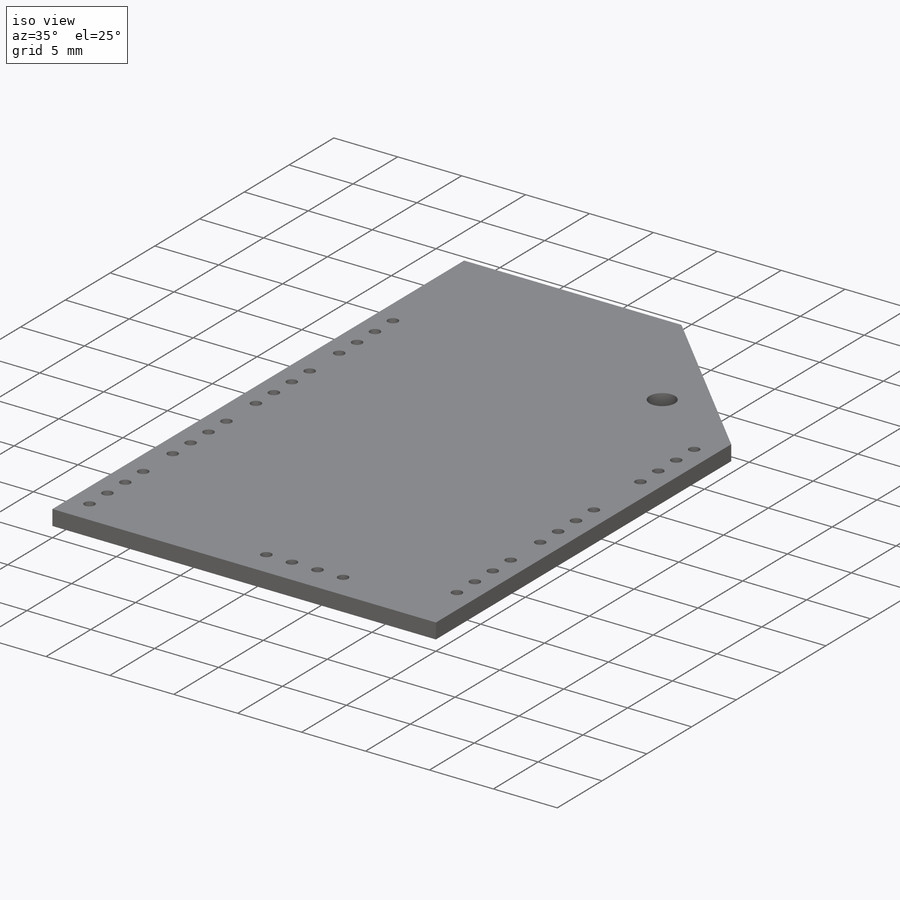
[diagram: iso view]
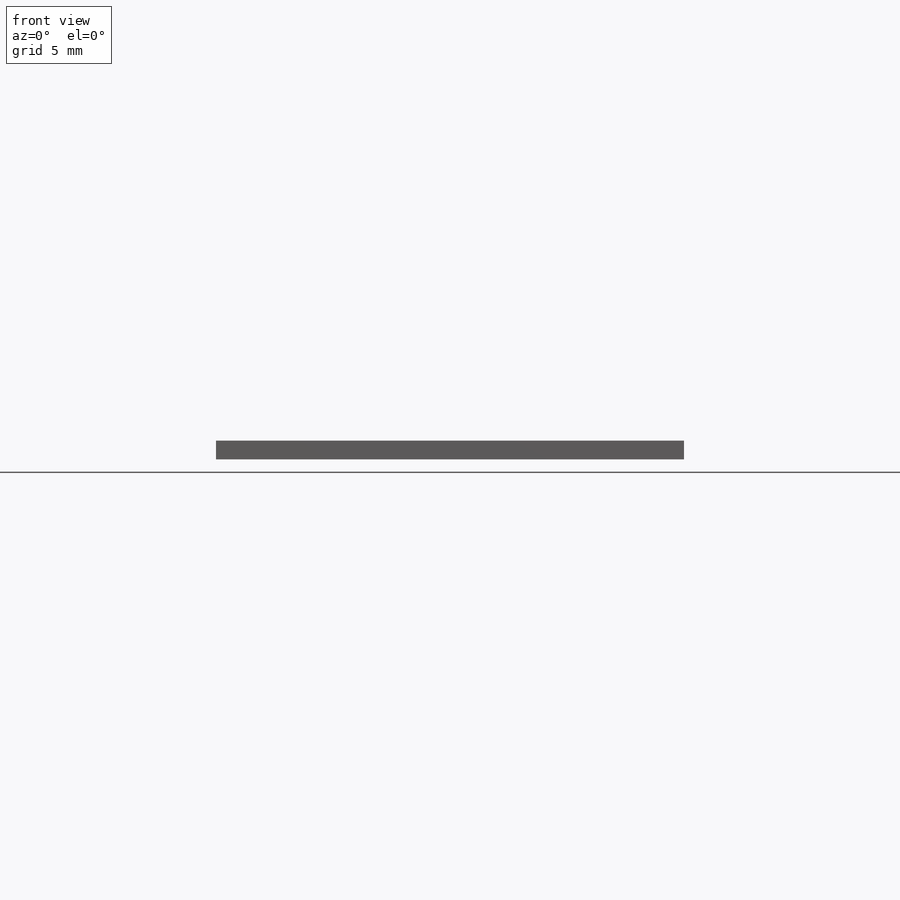
[diagram: front view]
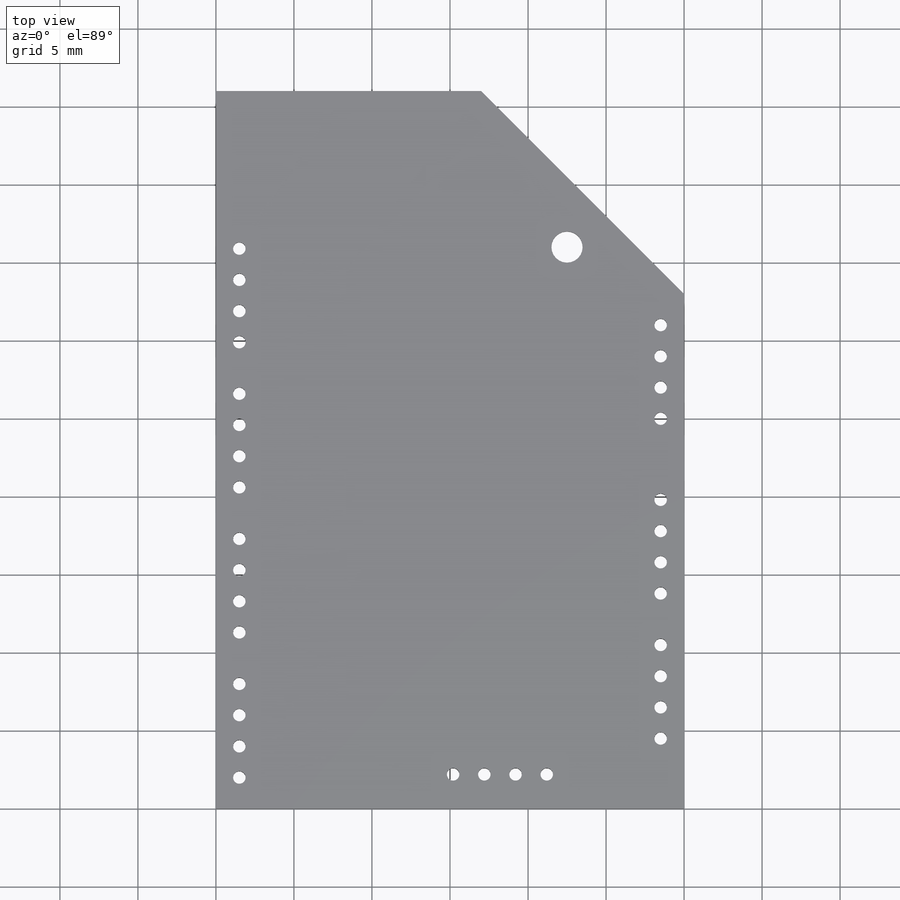
[diagram: top view]
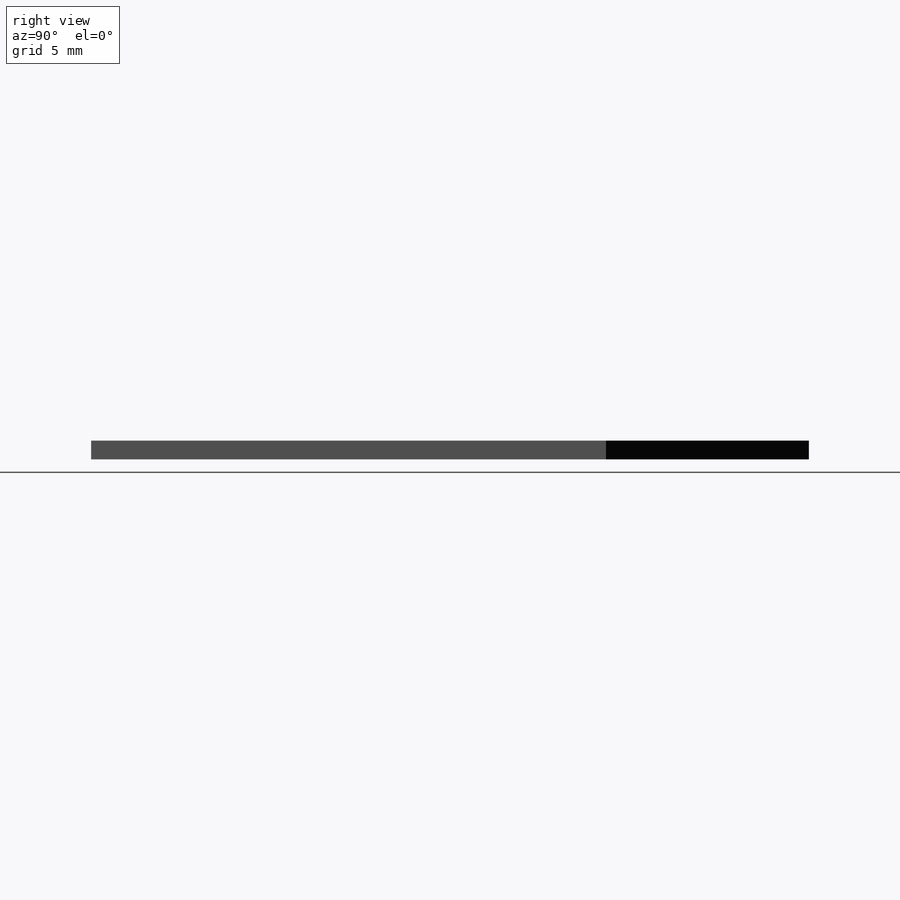
[diagram: right view]
SOLIDWORKS PART (.sldprt)
format: sldprt  version: not decoded by parser v0  size: 271,360 bytes
history: native  units: mm
features: sketch x5, cut_extrude x4, pattern_linear x3, material x1, extrude x1 (+11 scaffold rows collapsed)
feature tree (25):
  scaffold x11  (default folders/planes/origin — collapsed)
  material  "Material <not specified>"
  sketch  "Sketch1"  dims[D1=30.0mm D2=46.0mm D3=17.0mm D4=33.0mm]
  extrude  "Boss-Extrude1"  Depth=1.2mm
  sketch  "Sketch2"  dims[D3=2.0mm D1=22.5mm D2=36.0mm]
  cut_extrude  "Cut-Extrude1"  [1 undecoded]
  sketch  "Sketch3"  dims[D1=0.8mm D2=2.0mm D3=1.5mm D5=2.0mm D4=4.0]
  cut_extrude  "Cut-Extrude2"  [1 undecoded]
  pattern_linear  "LPattern1"  Count1=4 Count2=1 Spacing1=9.3mm Spacing2=10mm
  sketch  "Sketch4"  dims[D1=4.5mm D2=1.5mm D4=2.0mm D3=4.0]
  cut_extrude  "Cut-Extrude3"  [1 undecoded]
  pattern_linear  "LPattern2"  Count1=2 Count2=1 Spacing1=9.3mm Spacing2=10mm
  pattern_linear  "LPattern3"  Count1=2 Count2=1 Spacing1=20.5mm Spacing2=10mm
  sketch  "Sketch5"  dims[D1=2.2mm D2=15.2mm D4=2.0mm D3=4.0]
  cut_extrude  "Cut-Extrude4"  [1 undecoded]
decode coverage: 9 of 13 modeling features carry decoded parameters
note: 4 parameter values undecoded
summary: no parameter record found for 4 features
note: suppression state not decoded; provenance and decode notes live in map.json
